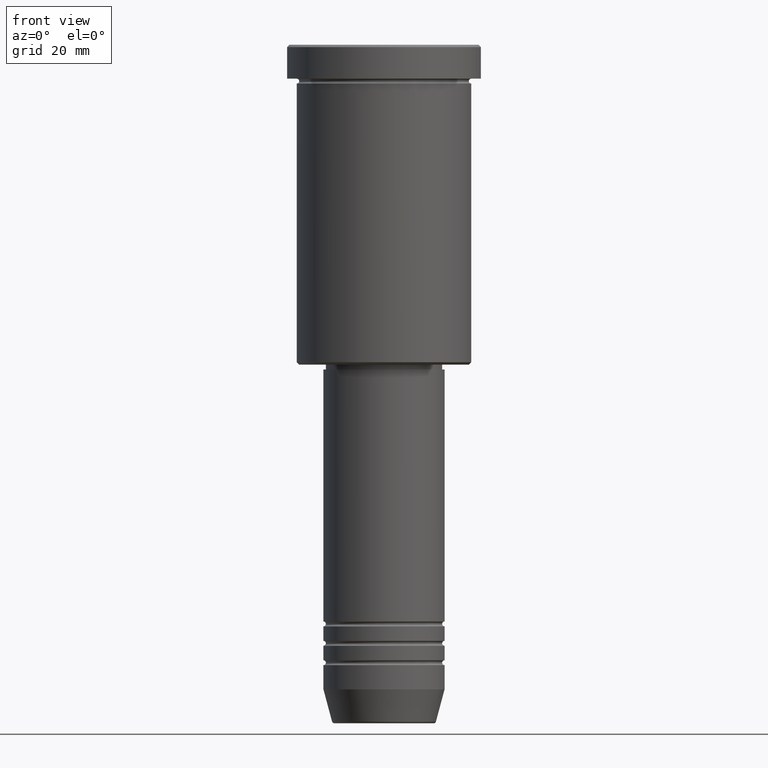
[diagram: clean part render]
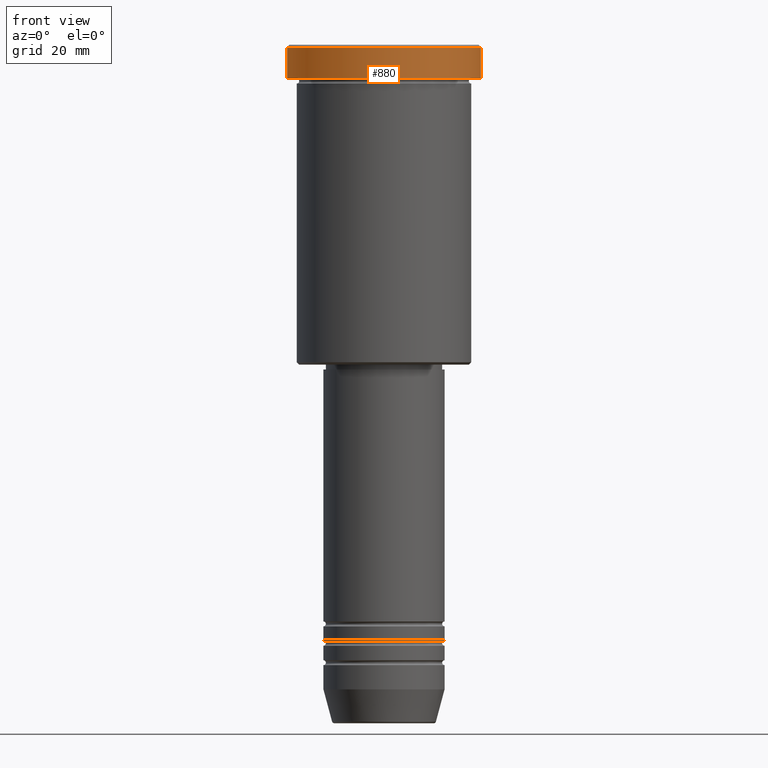
[diagram: same view with one face highlighted and labeled with its STEP entity id]
A machine part, front view. The second image highlights one B-rep face of the part: STEP entity #880.
In plain terms, the highlighted cylindrical surface (partial cylindrical patch) has radius 20 mm, axis along (-0, -0, 1).
Its self-contained STEP definition (entity closure, byte-faithful):
#43 = CARTESIAN_POINT ( 'NONE',  ( 0.000000000000000000, 0.000000000000000000, -6.999999999999995559 ) ) ;
#50 = CARTESIAN_POINT ( 'NONE',  ( 20.00000000000000000, 0.000000000000000000, -0.5000000000000247580 ) ) ;
#76 = DIRECTION ( 'NONE',  ( -0.000000000000000000, -0.000000000000000000, 1.000000000000000000 ) ) ;
#101 = CARTESIAN_POINT ( 'NONE',  ( 0.000000000000000000, 0.000000000000000000, 0.000000000000000000 ) ) ;
#134 = CARTESIAN_POINT ( 'NONE',  ( -20.00000000000000000, 2.449293598294706513E-15, -0.5000000000000247580 ) ) ;
#144 = CARTESIAN_POINT ( 'NONE',  ( -20.00000000000000000, 2.449293598294706513E-15, -6.999999999999995559 ) ) ;
#172 = VERTEX_POINT ( 'NONE', #134 ) ;
#200 = AXIS2_PLACEMENT_3D ( 'NONE', #43, #290, #648 ) ;
#208 = CARTESIAN_POINT ( 'NONE',  ( -20.00000000000000000, 2.449293598294706513E-15, 0.000000000000000000 ) ) ;
#266 = CARTESIAN_POINT ( 'NONE',  ( 20.00000000000000000, 0.000000000000000000, 0.000000000000000000 ) ) ;
#272 = EDGE_CURVE ( 'NONE', #456, #934, #1070, .T. ) ;
#290 = DIRECTION ( 'NONE',  ( -0.000000000000000000, -0.000000000000000000, 1.000000000000000000 ) ) ;
#373 = DIRECTION ( 'NONE',  ( -0.000000000000000000, -0.000000000000000000, 1.000000000000000000 ) ) ;
#404 = LINE ( 'NONE', #208, #564 ) ;
#413 = AXIS2_PLACEMENT_3D ( 'NONE', #101, #76, #470 ) ;
#417 = DIRECTION ( 'NONE',  ( 1.000000000000000000, 0.000000000000000000, 0.000000000000000000 ) ) ;
#422 = EDGE_CURVE ( 'NONE', #456, #172, #404, .T. ) ;
#447 = VERTEX_POINT ( 'NONE', #50 ) ;
#456 = VERTEX_POINT ( 'NONE', #144 ) ;
#470 = DIRECTION ( 'NONE',  ( 1.000000000000000000, 0.000000000000000000, 0.000000000000000000 ) ) ;
#485 = EDGE_LOOP ( 'NONE', ( #770, #701, #1004, #682 ) ) ;
#564 = VECTOR ( 'NONE', #574, 1000.000000000000000 ) ;
#574 = DIRECTION ( 'NONE',  ( -0.000000000000000000, -0.000000000000000000, 1.000000000000000000 ) ) ;
#648 = DIRECTION ( 'NONE',  ( 1.000000000000000000, 0.000000000000000000, 0.000000000000000000 ) ) ;
#669 = EDGE_CURVE ( 'NONE', #447, #172, #884, .T. ) ;
#682 = ORIENTED_EDGE ( 'NONE', *, *, #669, .T. ) ;
#701 = ORIENTED_EDGE ( 'NONE', *, *, #272, .T. ) ;
#730 = VECTOR ( 'NONE', #373, 1000.000000000000000 ) ;
#770 = ORIENTED_EDGE ( 'NONE', *, *, #422, .F. ) ;
#795 = EDGE_CURVE ( 'NONE', #934, #447, #1008, .T. ) ;
#799 = CARTESIAN_POINT ( 'NONE',  ( 0.000000000000000000, 0.000000000000000000, -0.5000000000000247580 ) ) ;
#823 = FACE_OUTER_BOUND ( 'NONE', #485, .T. ) ;
#872 = DIRECTION ( 'NONE',  ( 0.000000000000000000, 0.000000000000000000, -1.000000000000000000 ) ) ;
#880 = ADVANCED_FACE ( 'NONE', ( #823 ), #1087, .T. ) ;
#884 = CIRCLE ( 'NONE', #1169, 20.00000000000000000 ) ;
#934 = VERTEX_POINT ( 'NONE', #1118 ) ;
#1004 = ORIENTED_EDGE ( 'NONE', *, *, #795, .T. ) ;
#1008 = LINE ( 'NONE', #266, #730 ) ;
#1070 = CIRCLE ( 'NONE', #200, 20.00000000000000000 ) ;
#1087 = CYLINDRICAL_SURFACE ( 'NONE', #413, 20.00000000000000000 ) ;
#1118 = CARTESIAN_POINT ( 'NONE',  ( 20.00000000000000000, 0.000000000000000000, -6.999999999999995559 ) ) ;
#1169 = AXIS2_PLACEMENT_3D ( 'NONE', #799, #872, #417 ) ;